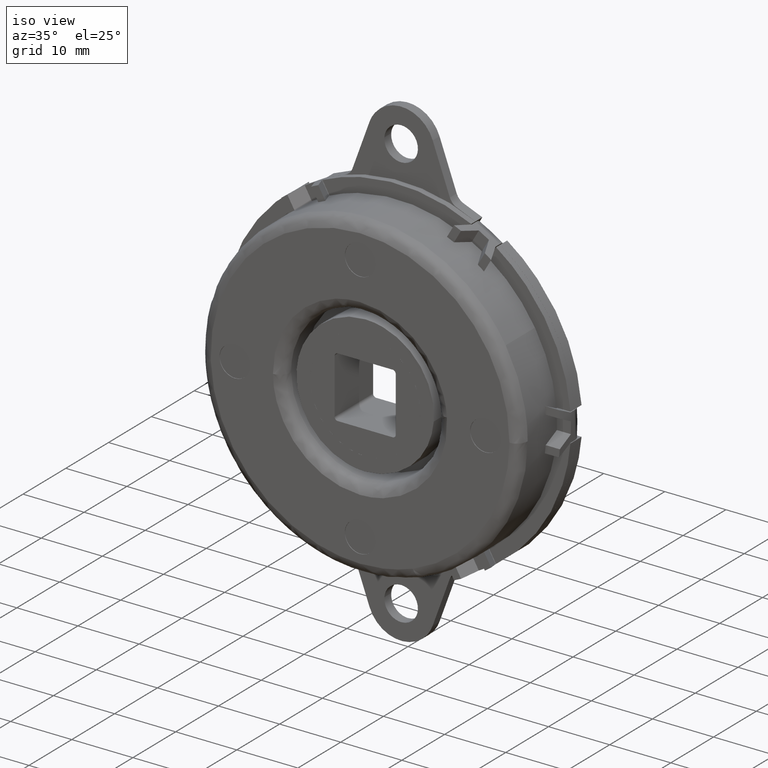
[diagram: clean part render]
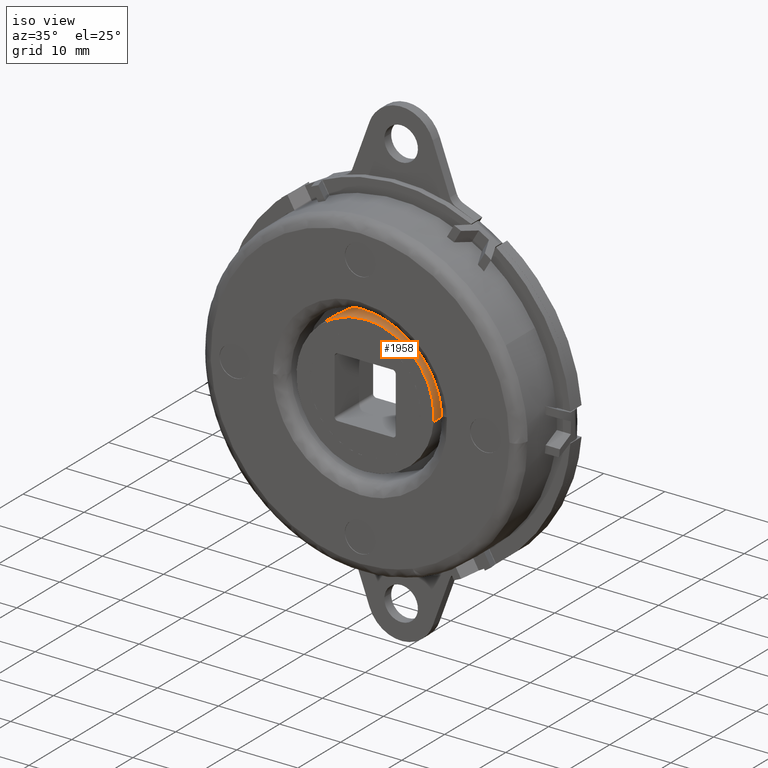
[diagram: same view with one face highlighted and labeled with its STEP entity id]
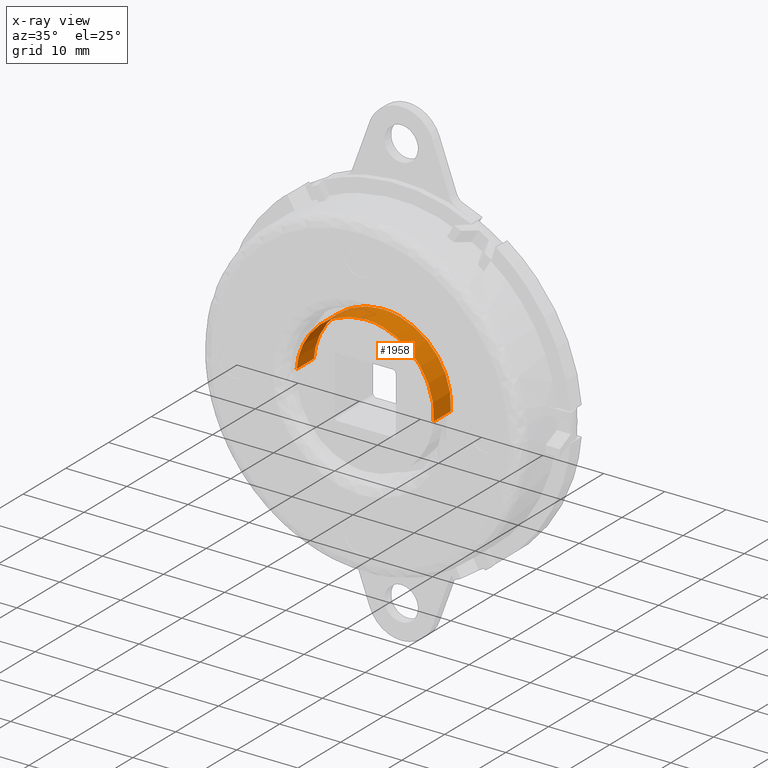
[diagram: x-ray of the same camera — body ghosted, the highlighted face saturated]
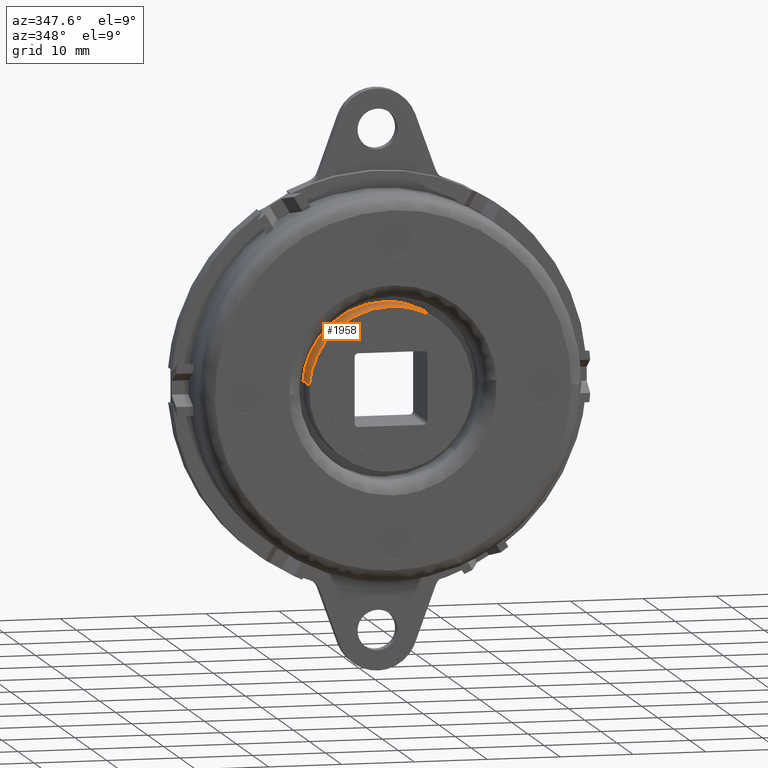
[diagram: same view with one face highlighted and labeled with its STEP entity id]
A machine part, iso view. The second image highlights one B-rep face of the part: STEP entity #1958.
The next image is the same camera in x-ray: the body ghosted, the highlighted face saturated — about 0% of this face is hidden behind the body in this view.
A second angle (auxiliary view) of the same face is appended — the face is thin or edge-on in the first view.
In plain terms, the highlighted face is a freeform B-spline surface patch.
Its self-contained STEP definition (entity closure, byte-faithful):
#1797=CARTESIAN_POINT('',(11.215320004492501,-10.0,-0.882664827004162));
#1798=VERTEX_POINT('',#1797);
#1812=CARTESIAN_POINT('',(-11.215320004492501,-10.0,0.882664827004162));
#1813=VERTEX_POINT('',#1812);
#1829=CARTESIAN_POINT('',(-11.215320004492501,-5.999999999999890,0.882664827004162));
#1830=VERTEX_POINT('',#1829);
#1831=CARTESIAN_POINT('',(-11.215320004492501,-10.0,0.882664827004162));
#1832=CARTESIAN_POINT('',(-11.215320004492501,-5.999999999999890,0.882664827004162));
#1833=QUASI_UNIFORM_CURVE('',1,(#1831,#1832),.UNSPECIFIED.,.F.,.U.);
#1834=EDGE_CURVE('',#1813,#1830,#1833,.T.);
#1853=CARTESIAN_POINT('',(11.215320004492501,-5.999999999999890,-0.882664827004163));
#1854=VERTEX_POINT('',#1853);
#1868=CARTESIAN_POINT('',(11.215320004492501,-10.0,-0.882664827004162));
#1869=CARTESIAN_POINT('',(11.215320004492501,-5.999999999999890,-0.882664827004163));
#1870=QUASI_UNIFORM_CURVE('',1,(#1868,#1869),.UNSPECIFIED.,.F.,.U.);
#1871=EDGE_CURVE('',#1798,#1854,#1870,.T.);
#1876=CARTESIAN_POINT('',(-11.215320004497690,-10.100000000000010,0.882664826938262));
#1877=CARTESIAN_POINT('',(-10.332655177559424,-10.100000000000005,12.097984831435948));
#1878=CARTESIAN_POINT('',(0.882664826938262,-10.100000000000010,11.215320004497690));
#1879=CARTESIAN_POINT('',(12.097984831435948,-10.100000000000005,10.332655177559424));
#1880=CARTESIAN_POINT('',(11.215320004497690,-10.100000000000010,-0.882664826938262));
#1881=CARTESIAN_POINT('',(-11.215320004497690,-5.897499999999885,0.882664826938262));
#1882=CARTESIAN_POINT('',(-10.332655177559424,-5.897499999999885,12.097984831435948));
#1883=CARTESIAN_POINT('',(0.882664826938262,-5.897499999999885,11.215320004497690));
#1884=CARTESIAN_POINT('',(12.097984831435948,-5.897499999999885,10.332655177559424));
#1885=CARTESIAN_POINT('',(11.215320004497690,-5.897499999999885,-0.882664826938262));
#1893=(BOUNDED_SURFACE()B_SPLINE_SURFACE(2,1,((#1876,#1881),(#1877,#1882),(#1878,#1883),(#1879,#1884),(#1880,#1885)),.UNSPECIFIED.,.F.,.F.,.U.)B_SPLINE_SURFACE_WITH_KNOTS((3,2,3),(2,2),(0.0,18.639610306789280,37.279220613578552),(0.0,4.202500000000120),.UNSPECIFIED.)GEOMETRIC_REPRESENTATION_ITEM()RATIONAL_B_SPLINE_SURFACE(((1.0,1.0),(0.707106781186548,0.707106781186548),(1.0,1.0),(0.707106781186548,0.707106781186548),(1.0,1.0)))REPRESENTATION_ITEM('')SURFACE());
#1894=CARTESIAN_POINT('',(0.0,-10.0,11.250000000000000));
#1895=VERTEX_POINT('',#1894);
#1896=CARTESIAN_POINT('',(11.215320004492495,-10.0,-0.882664827004162));
#1897=CARTESIAN_POINT('',(11.249999999999996,-9.999999999999998,-0.442013703902493));
#1898=CARTESIAN_POINT('',(11.250000000000000,-10.0,0.0));
#1899=CARTESIAN_POINT('',(11.249999999999998,-10.000000000000002,11.249999999999998));
#1900=CARTESIAN_POINT('',(0.0,-10.0,11.250000000000000));
#1908=(BOUNDED_CURVE()B_SPLINE_CURVE(2,(#1896,#1897,#1898,#1899,#1900),.UNSPECIFIED.,.F.,.U.)B_SPLINE_CURVE_WITH_KNOTS((3,2,3),(0.236331300630752,0.250000000000000,0.500000000000000),.UNSPECIFIED.)CURVE()GEOMETRIC_REPRESENTATION_ITEM()RATIONAL_B_SPLINE_CURVE((0.969723356167611,0.983986122578990,1.0,0.707106781186548,1.0))REPRESENTATION_ITEM(''));
#1909=EDGE_CURVE('',#1798,#1895,#1908,.T.);
#1910=ORIENTED_EDGE('',*,*,#1909,.F.);
#1911=ORIENTED_EDGE('',*,*,#1871,.T.);
#1912=CARTESIAN_POINT('',(0.0,-5.999999999999890,11.250000000000000));
#1913=VERTEX_POINT('',#1912);
#1914=CARTESIAN_POINT('',(11.215320004492495,-5.999999999999890,-0.882664827004163));
#1915=CARTESIAN_POINT('',(11.249999999999996,-5.999999999999890,-0.442013703902493));
#1916=CARTESIAN_POINT('',(11.250000000000000,-5.999999999999890,0.0));
#1917=CARTESIAN_POINT('',(11.249999999999998,-5.999999999999891,11.249999999999998));
#1918=CARTESIAN_POINT('',(0.0,-5.999999999999890,11.250000000000000));
#1926=(BOUNDED_CURVE()B_SPLINE_CURVE(2,(#1914,#1915,#1916,#1917,#1918),.UNSPECIFIED.,.F.,.U.)B_SPLINE_CURVE_WITH_KNOTS((3,2,3),(0.236331300630752,0.250000000000000,0.500000000000000),.UNSPECIFIED.)CURVE()GEOMETRIC_REPRESENTATION_ITEM()RATIONAL_B_SPLINE_CURVE((0.969723356167611,0.983986122578990,1.0,0.707106781186548,1.0))REPRESENTATION_ITEM(''));
#1927=EDGE_CURVE('',#1854,#1913,#1926,.T.);
#1928=ORIENTED_EDGE('',*,*,#1927,.T.);
#1929=CARTESIAN_POINT('',(0.0,-5.999999999999890,11.250000000000000));
#1930=CARTESIAN_POINT('',(-10.399393031032226,-5.999999999999890,11.249999999999996));
#1931=CARTESIAN_POINT('',(-11.215320004492497,-5.999999999999890,0.882664827004162));
#1939=(BOUNDED_CURVE()B_SPLINE_CURVE(2,(#1929,#1930,#1931),.UNSPECIFIED.,.F.,.U.)B_SPLINE_CURVE_WITH_KNOTS((3,3),(0.500000000000000,0.736331300630752),.UNSPECIFIED.)CURVE()GEOMETRIC_REPRESENTATION_ITEM()RATIONAL_B_SPLINE_CURVE((1.0,0.723120658607557,0.969723356167611))REPRESENTATION_ITEM(''));
#1940=EDGE_CURVE('',#1913,#1830,#1939,.T.);
#1941=ORIENTED_EDGE('',*,*,#1940,.T.);
#1942=ORIENTED_EDGE('',*,*,#1834,.F.);
#1943=CARTESIAN_POINT('',(0.0,-10.0,11.250000000000000));
#1944=CARTESIAN_POINT('',(-10.399393031032226,-10.0,11.249999999999996));
#1945=CARTESIAN_POINT('',(-11.215320004492497,-10.0,0.882664827004162));
#1953=(BOUNDED_CURVE()B_SPLINE_CURVE(2,(#1943,#1944,#1945),.UNSPECIFIED.,.F.,.U.)B_SPLINE_CURVE_WITH_KNOTS((3,3),(0.500000000000000,0.736331300630752),.UNSPECIFIED.)CURVE()GEOMETRIC_REPRESENTATION_ITEM()RATIONAL_B_SPLINE_CURVE((1.0,0.723120658607557,0.969723356167611))REPRESENTATION_ITEM(''));
#1954=EDGE_CURVE('',#1895,#1813,#1953,.T.);
#1955=ORIENTED_EDGE('',*,*,#1954,.F.);
#1956=EDGE_LOOP('',(#1910,#1911,#1928,#1941,#1942,#1955));
#1957=FACE_OUTER_BOUND('',#1956,.T.);
#1958=ADVANCED_FACE('',(#1957),#1893,.T.);